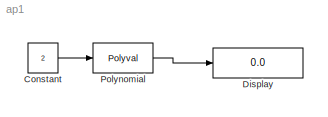
MODEL ap1
KIND model
BLOCK [Constant] Constant
  OutDataType = sfix(16)
  OutScaling = 2^0
  Value = 2
BLOCK [Display] Display
  Decimation = 1
  Lockdown = off
  Ports = [1]
BLOCK [Polyval] Polynomial
  Coefs = [1 2 3]
LINE Constant:1 -> Polynomial:1
LINE Polynomial:1 -> Display:1
